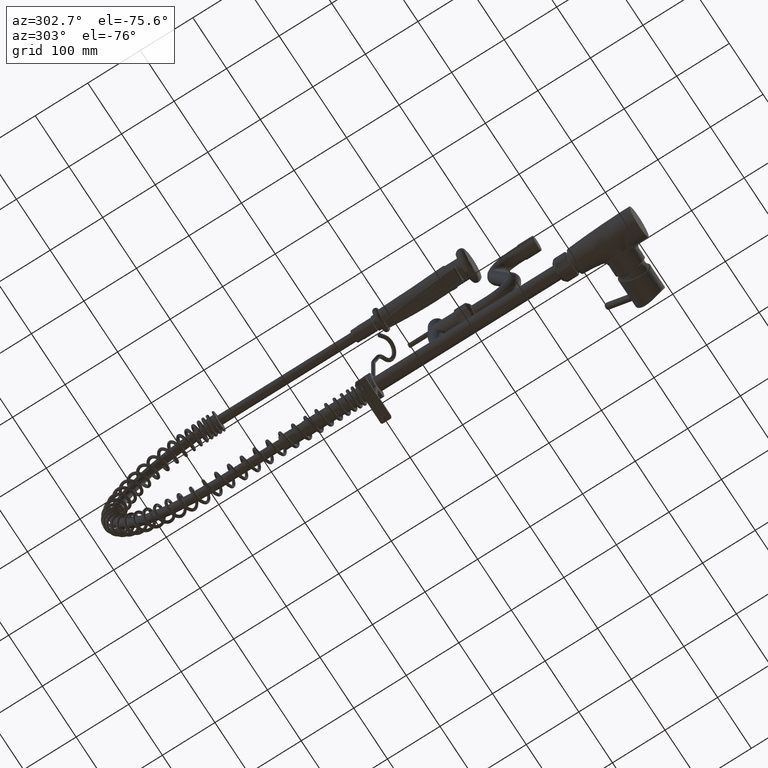
[diagram: clean part render]
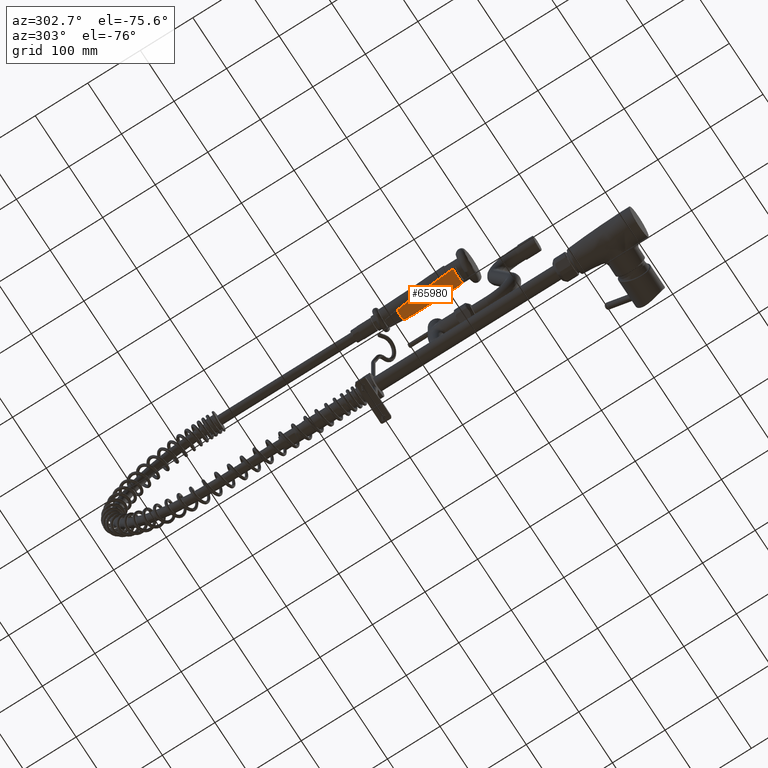
[diagram: same view with one face highlighted and labeled with its STEP entity id]
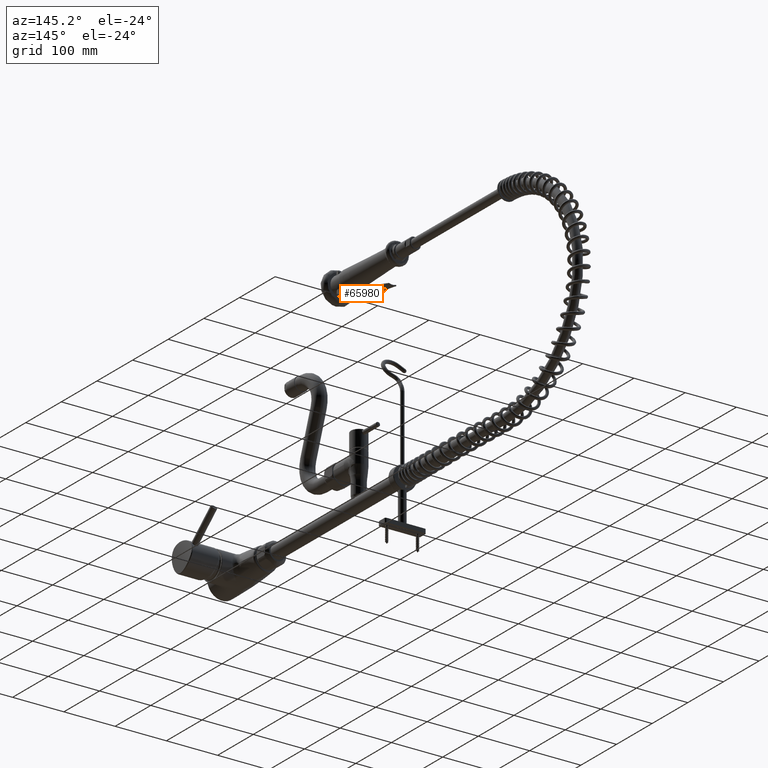
[diagram: same view with one face highlighted and labeled with its STEP entity id]
A machine part, auxiliary view. The second image highlights one B-rep face of the part: STEP entity #65980.
A second angle (auxiliary view) of the same face is appended — the face is thin or edge-on in the first view.
In plain terms, the highlighted face is a freeform B-spline surface patch.
Its self-contained STEP definition (entity closure, byte-faithful):
#22029=CARTESIAN_POINT('',(-1.401028635978E1,3.499243942189E2,
3.748944125298E2));
#22030=CARTESIAN_POINT('',(-1.400960546853E1,3.497394731117E2,
3.749468368928E2));
#22031=CARTESIAN_POINT('',(-1.400439826665E1,3.493511387567E2,
3.750541515695E2));
#22032=CARTESIAN_POINT('',(-1.398371914806E1,3.487226482184E2,
3.752190022587E2));
#22033=CARTESIAN_POINT('',(-1.394732291550E1,3.480196111076E2,
3.753941082570E2));
#22034=CARTESIAN_POINT('',(-1.389221603633E1,3.472189086624E2,
3.755845305352E2));
#22035=CARTESIAN_POINT('',(-1.381664445658E1,3.463162909073E2,
3.757911298538E2));
#22036=CARTESIAN_POINT('',(-1.375211310471E1,3.456431971269E2,
3.759411342437E2));
#22037=CARTESIAN_POINT('',(-1.371637910131E1,3.452889319098E2,
3.760194588577E2));
#22153=CARTESIAN_POINT('',(-1.371637910131E1,3.452889319098E2,
3.760194588577E2));
#22154=CARTESIAN_POINT('',(-1.355269121905E1,3.452803539612E2,
3.758959971719E2));
#22155=CARTESIAN_POINT('',(-1.322260095646E1,3.452640391106E2,
3.756535614347E2));
#22156=CARTESIAN_POINT('',(-1.271942106966E1,3.452402508478E2,
3.753042587475E2));
#22157=CARTESIAN_POINT('',(-1.220868482183E1,3.452179764359E2,
3.749691116240E2));
#22158=CARTESIAN_POINT('',(-1.169068592961E1,3.451969164884E2,
3.746483745302E2));
#22159=CARTESIAN_POINT('',(-1.116579970376E1,3.451770707041E2,
3.743421600536E2));
#22160=CARTESIAN_POINT('',(-1.063442935116E1,3.451583522714E2,
3.740505861062E2));
#22161=CARTESIAN_POINT('',(-1.009691131822E1,3.451406930055E2,
3.737737482960E2));
#22162=CARTESIAN_POINT('',(-9.553654185395E0,3.451240232343E2,
3.735117909469E2));
#22163=CARTESIAN_POINT('',(-9.005062422300E0,3.451082761369E2,
3.732648559530E2));
#22164=CARTESIAN_POINT('',(-8.451557918883E0,3.450933889547E2,
3.730331050385E2));
#22165=CARTESIAN_POINT('',(-7.893296738136E0,3.450792853494E2,
3.728165401282E2));
#22166=CARTESIAN_POINT('',(-7.330389891393E0,3.450658885113E2,
3.726151145808E2));
#22167=CARTESIAN_POINT('',(-6.762958535212E0,3.450531031642E2,
3.724288436040E2));
#22168=CARTESIAN_POINT('',(-6.190956490724E0,3.450410111787E2,
3.722576731660E2));
#22169=CARTESIAN_POINT('',(-5.614326629964E0,3.450297462948E2,
3.721015809033E2));
#22170=CARTESIAN_POINT('',(-5.032873177746E0,3.450194323226E2,
3.719605831458E2));
#22171=CARTESIAN_POINT('',(-4.447225464196E0,3.450102101096E2,
3.718348840889E2));
#22172=CARTESIAN_POINT('',(-3.858360172084E0,3.450022076383E2,
3.717246682738E2));
#22173=CARTESIAN_POINT('',(-3.267223528828E0,3.449955798236E2,
3.716300567644E2));
#22174=CARTESIAN_POINT('',(-2.674518087430E0,3.449903089915E2,
3.715511356669E2));
#22175=CARTESIAN_POINT('',(-2.080771764607E0,3.449862843239E2,
3.714879759326E2));
#22176=CARTESIAN_POINT('',(-1.486614088533E0,3.449834199780E2,
3.714406505047E2));
#22177=CARTESIAN_POINT('',(-8.923197825418E-1,3.449816133688E2,
3.714091391267E2));
#22178=CARTESIAN_POINT('',(-2.979155546975E-1,3.449807641956E2,
3.713933761767E2));
#22179=CARTESIAN_POINT('',(2.965170929589E-1,3.449807522890E2,
3.713933611309E2));
#22180=CARTESIAN_POINT('',(8.909220243356E-1,3.449815794130E2,
3.714090931894E2));
#22181=CARTESIAN_POINT('',(1.485230040077E0,3.449833682508E2,3.714405725809E2));
#22182=CARTESIAN_POINT('',(2.079427137312E0,3.449862217934E2,3.714878657674E2));
#22183=CARTESIAN_POINT('',(2.673236766064E0,3.449902458399E2,3.715509962232E2));
#22184=CARTESIAN_POINT('',(3.266012237270E0,3.449955285663E2,3.716298891546E2));
#22185=CARTESIAN_POINT('',(3.857213694562E0,3.450021845484E2,3.717244706364E2));
#22186=CARTESIAN_POINT('',(4.446118483548E0,3.450102286648E2,3.718346506113E2));
#22187=CARTESIAN_POINT('',(5.031753703099E0,3.450194939296E2,3.719603031515E2));
#22188=CARTESIAN_POINT('',(5.613112491949E0,3.450298417764E2,3.721012340024E2));
#22189=CARTESIAN_POINT('',(6.189559874453E0,3.450411209526E2,3.722572345640E2));
#22190=CARTESIAN_POINT('',(6.761335599951E0,3.450531987206E2,3.724282967345E2));
#22191=CARTESIAN_POINT('',(7.328531265758E0,3.450659309319E2,3.726144537578E2));
#22192=CARTESIAN_POINT('',(7.891227394988E0,3.450792313760E2,3.728157723679E2));
#22193=CARTESIAN_POINT('',(8.449331480618E0,3.450932112511E2,3.730322457960E2));
#22194=CARTESIAN_POINT('',(9.002762458682E0,3.451079607691E2,3.732639337142E2));
#22195=CARTESIAN_POINT('',(9.551385351065E0,3.451235710800E2,3.735108501285E2));
#22196=CARTESIAN_POINT('',(1.009476087267E1,3.451401182351E2,3.737728298941E2));
#22197=CARTESIAN_POINT('',(1.063247138146E1,3.451576835836E2,3.740497278504E2));
#22198=CARTESIAN_POINT('',(1.116409421578E1,3.451763484605E2,3.743413952696E2));
#22199=CARTESIAN_POINT('',(1.168928109981E1,3.451962042494E2,3.746477287877E2));
#22200=CARTESIAN_POINT('',(1.220761378774E1,3.452173190634E2,3.749686110453E2));
#22201=CARTESIAN_POINT('',(1.271871479001E1,3.452398321213E2,3.753038946498E2));
#22202=CARTESIAN_POINT('',(1.322223700754E1,3.452635952935E2,3.756534218558E2));
#22203=CARTESIAN_POINT('',(1.355263919108E1,3.452808784604E2,3.758957983775E2));
#22204=CARTESIAN_POINT('',(1.371645189268E1,3.452896018376E2,3.760193128456E2));
#22444=CARTESIAN_POINT('',(1.371645189268E1,3.452896018376E2,3.760193128456E2));
#22445=CARTESIAN_POINT('',(1.375217326122E1,3.456437750092E2,3.759410068994E2));
#22446=CARTESIAN_POINT('',(1.381674403600E1,3.463174043480E2,3.757908787172E2));
#22447=CARTESIAN_POINT('',(1.389225849113E1,3.472194837377E2,3.755843955628E2));
#22448=CARTESIAN_POINT('',(1.394734956053E1,3.480200558771E2,3.753939999218E2));
#22449=CARTESIAN_POINT('',(1.398372935820E1,3.487229112588E2,3.752189343859E2));
#22450=CARTESIAN_POINT('',(1.400440061040E1,3.493512723831E2,3.750541150408E2));
#22451=CARTESIAN_POINT('',(1.400960567354E1,3.497395163172E2,3.749468246801E2));
#22452=CARTESIAN_POINT('',(1.401028636E1,3.499243942195E2,3.748944125294E2));
#22488=CARTESIAN_POINT('',(1.401028636E1,3.499243942195E2,3.748944125294E2));
#22489=CARTESIAN_POINT('',(1.401469642168E1,3.511224769632E2,3.745547597094E2));
#22490=CARTESIAN_POINT('',(1.402351025785E1,3.535213795606E2,3.738855852351E2));
#22491=CARTESIAN_POINT('',(1.403668630113E1,3.571276402672E2,3.729122743030E2));
#22492=CARTESIAN_POINT('',(1.404544682791E1,3.595369350121E2,3.722837418764E2));
#22493=CARTESIAN_POINT('',(1.404982022584E1,3.607428123875E2,3.719745722257E2));
#24441=CARTESIAN_POINT('',(-1.404982021274E1,3.607428123843E2,
3.719745722131E2));
#24442=CARTESIAN_POINT('',(-1.404544681297E1,3.595369345078E2,
3.722837419923E2));
#24443=CARTESIAN_POINT('',(-1.403668630298E1,3.571276391018E2,
3.729122746171E2));
#24444=CARTESIAN_POINT('',(-1.402351025189E1,3.535213784147E2,
3.738855855491E2));
#24445=CARTESIAN_POINT('',(-1.401469641969E1,3.511224764731E2,
3.745547598485E2));
#24446=CARTESIAN_POINT('',(-1.401028635978E1,3.499243942189E2,
3.748944125298E2));
#24471=CARTESIAN_POINT('',(-9.655991061084E0,4.546146521582E2,
3.546409675833E2));
#24472=CARTESIAN_POINT('',(-9.497284473141E0,4.546100262487E2,
3.545509262492E2));
#24473=CARTESIAN_POINT('',(-9.177562635915E0,4.546010206566E2,
3.543753940241E2));
#24474=CARTESIAN_POINT('',(-8.691539065168E0,4.545882591558E2,
3.541259302130E2));
#24475=CARTESIAN_POINT('',(-8.199261802284E0,4.545762429216E2,
3.538903407412E2));
#24476=CARTESIAN_POINT('',(-7.700984475648E0,4.545649713343E2,
3.536687246966E2));
#24477=CARTESIAN_POINT('',(-7.196925228686E0,4.545544423707E2,
3.534611838092E2));
#24478=CARTESIAN_POINT('',(-6.687316860977E0,4.545446537339E2,
3.532678511508E2));
#24479=CARTESIAN_POINT('',(-6.172288725660E0,4.545356052397E2,
3.530887356289E2));
#24480=CARTESIAN_POINT('',(-5.651892983173E0,4.545272958486E2,
3.529238522284E2));
#24481=CARTESIAN_POINT('',(-5.126248250610E0,4.545197263020E2,
3.527732856590E2));
#24482=CARTESIAN_POINT('',(-4.596367645525E0,4.545129084657E2,
3.526373699690E2));
#24483=CARTESIAN_POINT('',(-4.063327039261E0,4.545068494630E2,
3.525163718895E2));
#24484=CARTESIAN_POINT('',(-3.527837435088E0,4.545015479602E2,
3.524104114342E2));
#24485=CARTESIAN_POINT('',(-2.990072655521E0,4.544969960845E2,
3.523194966091E2));
#24486=CARTESIAN_POINT('',(-2.450327698597E0,4.544931874388E2,
3.522436805178E2));
#24487=CARTESIAN_POINT('',(-1.908668269583E0,4.544901142325E2,
3.521830070639E2));
#24488=CARTESIAN_POINT('',(-1.365108596622E0,4.544877917547E2,
3.521374449702E2));
#24489=CARTESIAN_POINT('',(-8.197621373267E-1,4.544862337700E2,
3.521070169072E2));
#24490=CARTESIAN_POINT('',(-2.733722307549E-1,4.544854519812E2,
3.520917889178E2));
#24491=CARTESIAN_POINT('',(2.733722316170E-1,4.544854519812E2,
3.520917889178E2));
#24492=CARTESIAN_POINT('',(8.197621379922E-1,4.544862337700E2,
3.521070169073E2));
#24493=CARTESIAN_POINT('',(1.365108597258E0,4.544877917547E2,3.521374449702E2));
#24494=CARTESIAN_POINT('',(1.908668270492E0,4.544901142325E2,3.521830070640E2));
#24495=CARTESIAN_POINT('',(2.450327699739E0,4.544931874388E2,3.522436805180E2));
#24496=CARTESIAN_POINT('',(2.990072656898E0,4.544969960845E2,3.523194966093E2));
#24497=CARTESIAN_POINT('',(3.527837436763E0,4.545015479602E2,3.524104114345E2));
#24498=CARTESIAN_POINT('',(4.063327041135E0,4.545068494630E2,3.525163718899E2));
#24499=CARTESIAN_POINT('',(4.596367647257E0,4.545129084657E2,3.526373699694E2));
#24500=CARTESIAN_POINT('',(5.126248252323E0,4.545197263020E2,3.527732856595E2));
#24501=CARTESIAN_POINT('',(5.651892985002E0,4.545272958486E2,3.529238522290E2));
#24502=CARTESIAN_POINT('',(6.172288727530E0,4.545356052397E2,3.530887356295E2));
#24503=CARTESIAN_POINT('',(6.687316862351E0,4.545446537339E2,3.532678511515E2));
#24504=CARTESIAN_POINT('',(7.196925229931E0,4.545544423707E2,3.534611838091E2));
#24505=CARTESIAN_POINT('',(7.700984474936E0,4.545649713344E2,3.536687246989E2));
#24506=CARTESIAN_POINT('',(8.199261806776E0,4.545762429212E2,3.538903407335E2));
#24507=CARTESIAN_POINT('',(8.691539048665E0,4.545882591572E2,3.541259302417E2));
#24508=CARTESIAN_POINT('',(9.177562696866E0,4.546010206515E2,3.543753939165E2));
#24509=CARTESIAN_POINT('',(9.497284341336E0,4.546100262597E2,3.545509264808E2));
#24510=CARTESIAN_POINT('',(9.655990929359E0,4.546146521692E2,3.546409678149E2));
#24515=CARTESIAN_POINT('',(1.404982022584E1,3.607428123875E2,3.719745722257E2));
#24516=CARTESIAN_POINT('',(1.405880075083E1,3.628550115283E2,3.714341290791E2));
#24517=CARTESIAN_POINT('',(1.406261877242E1,3.671088026266E2,3.703671193654E2));
#24518=CARTESIAN_POINT('',(1.402371440649E1,3.735947086994E2,3.688041765310E2));
#24519=CARTESIAN_POINT('',(1.393892975871E1,3.801312680307E2,3.672920364884E2));
#24520=CARTESIAN_POINT('',(1.380758515292E1,3.867042056638E2,3.658335700085E2));
#24521=CARTESIAN_POINT('',(1.362841116167E1,3.932809473943E2,3.644346035601E2));
#24522=CARTESIAN_POINT('',(1.340364391785E1,3.998344265329E2,3.631018177217E2));
#24523=CARTESIAN_POINT('',(1.313493749294E1,4.063277531206E2,3.618422214318E2));
#24524=CARTESIAN_POINT('',(1.282586317188E1,4.127113958745E2,3.606645468804E2));
#24525=CARTESIAN_POINT('',(1.248108212191E1,4.189515326816E2,3.595740038702E2));
#24526=CARTESIAN_POINT('',(1.210394220492E1,4.250302636846E2,3.585714519846E2));
#24527=CARTESIAN_POINT('',(1.169917772902E1,4.309349171195E2,3.576574758334E2));
#24528=CARTESIAN_POINT('',(1.141338581364E1,4.347562141388E2,3.571058054265E2));
#24529=CARTESIAN_POINT('',(1.126680936570E1,4.366377139828E2,3.568438676634E2));
#24677=CARTESIAN_POINT('',(1.126680936570E1,4.366377139828E2,3.568438676634E2));
#24678=CARTESIAN_POINT('',(1.114182335727E1,4.382033815179E2,3.566238345645E2));
#24679=CARTESIAN_POINT('',(1.088629225816E1,4.413010379078E2,3.562022958711E2));
#24680=CARTESIAN_POINT('',(1.048916275088E1,4.458464339312E2,3.556254251289E2));
#24681=CARTESIAN_POINT('',(1.007906084270E1,4.502901427273E2,3.551025017140E2));
#24682=CARTESIAN_POINT('',(9.798116603472E0,4.531845563338E2,3.547891010187E2));
#24683=CARTESIAN_POINT('',(9.655990929359E0,4.546146521692E2,3.546409678149E2));
#25192=CARTESIAN_POINT('',(-9.655991061084E0,4.546146521582E2,
3.546409675833E2));
#25238=CARTESIAN_POINT('',(-9.655991061084E0,4.546146521582E2,
3.546409675833E2));
#25239=CARTESIAN_POINT('',(-9.798090104546E0,4.531848121433E2,
3.547890714002E2));
#25240=CARTESIAN_POINT('',(-1.007891931659E1,4.502914472803E2,
3.551023434287E2));
#25241=CARTESIAN_POINT('',(-1.048879546029E1,4.458508831065E2,
3.556249206309E2));
#25242=CARTESIAN_POINT('',(-1.088534791153E1,4.413101521173E2,
3.562010313047E2));
#25243=CARTESIAN_POINT('',(-1.114109345781E1,4.382166856499E2,
3.566222635477E2));
#25244=CARTESIAN_POINT('',(-1.126591834591E1,4.366534037137E2,
3.568419167568E2));
#25345=CARTESIAN_POINT('',(-1.126591834591E1,4.366534037137E2,
3.568419167568E2));
#25346=CARTESIAN_POINT('',(-1.141224792212E1,4.347754633907E2,
3.571033075719E2));
#25347=CARTESIAN_POINT('',(-1.169726813299E1,4.309593419035E2,
3.576537224598E2));
#25348=CARTESIAN_POINT('',(-1.210239799771E1,4.250546129068E2,
3.585675794135E2));
#25349=CARTESIAN_POINT('',(-1.247977883367E1,4.189736477855E2,
3.595702328359E2));
#25350=CARTESIAN_POINT('',(-1.282479367943E1,4.127320618351E2,
3.606608242916E2));
#25351=CARTESIAN_POINT('',(-1.313417325335E1,4.063454483750E2,
3.618388785337E2));
#25352=CARTESIAN_POINT('',(-1.340310359759E1,3.998477954890E2,
3.630991117007E2));
#25353=CARTESIAN_POINT('',(-1.362816986270E1,3.932905263478E2,
3.644326394716E2));
#25354=CARTESIAN_POINT('',(-1.380738669816E1,3.867117269763E2,
3.658319060357E2));
#25355=CARTESIAN_POINT('',(-1.393885821975E1,3.801364518986E2,
3.672908614068E2));
#25356=CARTESIAN_POINT('',(-1.402369496388E1,3.735974495979E2,
3.688035264042E2));
#25357=CARTESIAN_POINT('',(-1.406261396550E1,3.671108136264E2,
3.703666190818E2));
#25358=CARTESIAN_POINT('',(-1.405880231438E1,3.628557141750E2,
3.714339480642E2));
#25359=CARTESIAN_POINT('',(-1.404982021274E1,3.607428123843E2,
3.719745722131E2));
#49558=VERTEX_POINT('',#24515);
#49559=VERTEX_POINT('',#24529);
#49563=VERTEX_POINT('',#22488);
#49565=VERTEX_POINT('',#22444);
#49571=VERTEX_POINT('',#24683);
#49591=VERTEX_POINT('',#25192);
#49592=VERTEX_POINT('',#25244);
#49596=VERTEX_POINT('',#25359);
#49598=VERTEX_POINT('',#24446);
#49600=VERTEX_POINT('',#22037);
#65912=CARTESIAN_POINT('',(-1.435934236181E1,4.559230858447E2,
3.583278112421E2));
#65913=CARTESIAN_POINT('',(-1.434586171325E1,4.370688075966E2,
3.590098205390E2));
#65914=CARTESIAN_POINT('',(-1.431973150593E1,3.994185183414E2,
3.627797316958E2));
#65915=CARTESIAN_POINT('',(-1.429376608794E1,3.624952340966E2,
3.713152424223E2));
#65916=CARTESIAN_POINT('',(-1.428045022871E1,3.443655191497E2,
3.767435720957E2));
#65917=CARTESIAN_POINT('',(-1.347811403745E1,4.558770442678E2,
3.573710524146E2));
#65918=CARTESIAN_POINT('',(-1.344819196826E1,4.369836027299E2,
3.580862343074E2));
#65919=CARTESIAN_POINT('',(-1.338983485699E1,3.992632346320E2,
3.619279048800E2));
#65920=CARTESIAN_POINT('',(-1.333179406242E1,3.622877692059E2,
3.705428723123E2));
#65921=CARTESIAN_POINT('',(-1.330218830994E1,3.441366615546E2,
3.760120231856E2));
#65922=CARTESIAN_POINT('',(-1.127707489382E1,4.557829467437E2,
3.554156664381E2));
#65923=CARTESIAN_POINT('',(-1.122417927836E1,4.368095736870E2,
3.562010616137E2));
#65924=CARTESIAN_POINT('',(-1.111764512538E1,3.989468673736E2,
3.601947882790E2));
#65925=CARTESIAN_POINT('',(-1.101118280209E1,3.618671931665E2,
3.689777097268E2));
#65926=CARTESIAN_POINT('',(-1.095835901631E1,3.436739268650E2,
3.745328769845E2));
#65927=CARTESIAN_POINT('',(-7.243786438641E0,4.556767208673E2,
3.532082286720E2));
#65928=CARTESIAN_POINT('',(-7.192698532881E0,4.366134033727E2,
3.540792540612E2));
#65929=CARTESIAN_POINT('',(-7.090325528293E0,3.985922007411E2,
3.582568499114E2));
#65930=CARTESIAN_POINT('',(-6.987093810902E0,3.614000794934E2,
3.672406372251E2));
#65931=CARTESIAN_POINT('',(-6.935147192339E0,3.431625757586E2,
3.728983196100E2));
#65932=CARTESIAN_POINT('',(-2.466930228435E0,4.556178770316E2,
3.519854092229E2));
#65933=CARTESIAN_POINT('',(-2.446185297961E0,4.365048908744E2,
3.529072747930E2));
#65934=CARTESIAN_POINT('',(-2.404766971538E0,3.983970140785E2,
3.571920633937E2));
#65935=CARTESIAN_POINT('',(-2.363646524875E0,3.611441846552E2,
3.662892087394E2));
#65936=CARTESIAN_POINT('',(-2.343199474160E0,3.428827725361E2,
3.720039122435E2));
#65937=CARTESIAN_POINT('',(2.466930228435E0,4.556178770316E2,3.519854092229E2));
#65938=CARTESIAN_POINT('',(2.446185297961E0,4.365048908744E2,3.529072747930E2));
#65939=CARTESIAN_POINT('',(2.404766971538E0,3.983970140785E2,3.571920633937E2));
#65940=CARTESIAN_POINT('',(2.363646524875E0,3.611441846552E2,3.662892087394E2));
#65941=CARTESIAN_POINT('',(2.343199474160E0,3.428827725361E2,3.720039122435E2));
#65942=CARTESIAN_POINT('',(7.243786438641E0,4.556767208673E2,3.532082286720E2));
#65943=CARTESIAN_POINT('',(7.192698532882E0,4.366134033727E2,3.540792540612E2));
#65944=CARTESIAN_POINT('',(7.090325528293E0,3.985922007411E2,3.582568499114E2));
#65945=CARTESIAN_POINT('',(6.987093810902E0,3.614000794934E2,3.672406372251E2));
#65946=CARTESIAN_POINT('',(6.935147192340E0,3.431625757586E2,3.728983196100E2));
#65947=CARTESIAN_POINT('',(1.127703729995E1,4.557829457536E2,3.554156458628E2));
#65948=CARTESIAN_POINT('',(1.122414170133E1,4.368095718585E2,3.562010418366E2));
#65949=CARTESIAN_POINT('',(1.111760758714E1,3.989468640678E2,3.601947702156E2));
#65950=CARTESIAN_POINT('',(1.101114529397E1,3.618671888126E2,3.689776935357E2));
#65951=CARTESIAN_POINT('',(1.095832151636E1,3.436739220987E2,3.745328617489E2));
#65952=CARTESIAN_POINT('',(1.347805020577E1,4.558770415389E2,3.573709957072E2));
#65953=CARTESIAN_POINT('',(1.344812747033E1,4.369835976830E2,3.580861796363E2));
#65954=CARTESIAN_POINT('',(1.338976896190E1,3.992632254571E2,3.619278546186E2));
#65955=CARTESIAN_POINT('',(1.333172676309E1,3.622877570089E2,3.705428269217E2));
#65956=CARTESIAN_POINT('',(1.330212033728E1,3.441366481351E2,3.760119802894E2));
#65957=CARTESIAN_POINT('',(1.435925611592E1,4.559230813387E2,3.583277176046E2));
#65958=CARTESIAN_POINT('',(1.434577385827E1,4.370687992576E2,3.590097301481E2));
#65959=CARTESIAN_POINT('',(1.431964049694E1,3.994185031438E2,3.627796483280E2));
#65960=CARTESIAN_POINT('',(1.429367193978E1,3.624952137921E2,3.713151668309E2));
#65961=CARTESIAN_POINT('',(1.428035448628E1,3.443654967515E2,3.767435004994E2));
#65962=B_SPLINE_SURFACE_WITH_KNOTS('',3,3,((#65912,#65913,#65914,#65915,#65916),
(#65917,#65918,#65919,#65920,#65921),(#65922,#65923,#65924,#65925,#65926),(
#65927,#65928,#65929,#65930,#65931),(#65932,#65933,#65934,#65935,#65936),
(#65937,#65938,#65939,#65940,#65941),(#65942,#65943,#65944,#65945,#65946),(
#65947,#65948,#65949,#65950,#65951),(#65952,#65953,#65954,#65955,#65956),
(#65957,#65958,#65959,#65960,#65961)),.UNSPECIFIED.,.F.,.F.,.F.,(4,1,1,1,1,1,1,
4),(4,1,4),(2.849466886097E-2,1.427944230875E-1,2.856493475286E-1,
4.285449989546E-1,5.714550010454E-1,7.143506524714E-1,8.572055769125E-1,
9.715016023103E-1),(-2.524747333753E-3,1.250289115913E-1,2.525825705164E-1),
.UNSPECIFIED.);
#65964=ORIENTED_EDGE('',*,*,#65963,.T.);
#65966=ORIENTED_EDGE('',*,*,#65965,.T.);
#65968=ORIENTED_EDGE('',*,*,#65967,.F.);
#65970=ORIENTED_EDGE('',*,*,#65969,.T.);
#65972=ORIENTED_EDGE('',*,*,#65971,.T.);
#65973=ORIENTED_EDGE('',*,*,#65898,.T.);
#65974=ORIENTED_EDGE('',*,*,#63203,.T.);
#65975=ORIENTED_EDGE('',*,*,#63332,.T.);
#65976=ORIENTED_EDGE('',*,*,#63515,.T.);
#65977=ORIENTED_EDGE('',*,*,#63565,.T.);
#65978=EDGE_LOOP('',(#65964,#65966,#65968,#65970,#65972,#65973,#65974,#65975,
#65976,#65977));
#65979=FACE_OUTER_BOUND('',#65978,.F.);
#22038=B_SPLINE_CURVE_WITH_KNOTS('',3,(#22029,#22030,#22031,#22032,#22033,
#22034,#22035,#22036,#22037),.UNSPECIFIED.,.F.,.F.,(4,1,1,1,1,1,4),(0.E0,
1.666666666667E-1,3.333333333333E-1,5.E-1,6.666666666667E-1,8.333333333333E-1,
1.E0),.UNSPECIFIED.);
#22205=B_SPLINE_CURVE_WITH_KNOTS('',3,(#22153,#22154,#22155,#22156,#22157,
#22158,#22159,#22160,#22161,#22162,#22163,#22164,#22165,#22166,#22167,#22168,
#22169,#22170,#22171,#22172,#22173,#22174,#22175,#22176,#22177,#22178,#22179,
#22180,#22181,#22182,#22183,#22184,#22185,#22186,#22187,#22188,#22189,#22190,
#22191,#22192,#22193,#22194,#22195,#22196,#22197,#22198,#22199,#22200,#22201,
#22202,#22203,#22204),.UNSPECIFIED.,.F.,.F.,(4,1,1,1,1,1,1,1,1,1,1,1,1,1,1,1,1,
1,1,1,1,1,1,1,1,1,1,1,1,1,1,1,1,1,1,1,1,1,1,1,1,1,1,1,1,1,1,1,1,4),(0.E0,
2.040816326531E-2,4.081632653061E-2,6.122448979592E-2,8.163265306122E-2,
1.020408163265E-1,1.224489795918E-1,1.428571428571E-1,1.632653061224E-1,
1.836734693878E-1,2.040816326531E-1,2.244897959184E-1,2.448979591837E-1,
2.653061224490E-1,2.857142857143E-1,3.061224489796E-1,3.265306122449E-1,
3.469387755102E-1,3.673469387755E-1,3.877551020408E-1,4.081632653061E-1,
4.285714285714E-1,4.489795918367E-1,4.693877551020E-1,4.897959183673E-1,
5.102040816327E-1,5.306122448980E-1,5.510204081633E-1,5.714285714286E-1,
5.918367346939E-1,6.122448979592E-1,6.326530612245E-1,6.530612244898E-1,
6.734693877551E-1,6.938775510204E-1,7.142857142857E-1,7.346938775510E-1,
7.551020408163E-1,7.755102040816E-1,7.959183673469E-1,8.163265306122E-1,
8.367346938776E-1,8.571428571429E-1,8.775510204082E-1,8.979591836735E-1,
9.183673469388E-1,9.387755102041E-1,9.591836734694E-1,9.795918367347E-1,1.E0),
.UNSPECIFIED.);
#22453=B_SPLINE_CURVE_WITH_KNOTS('',3,(#22444,#22445,#22446,#22447,#22448,
#22449,#22450,#22451,#22452),.UNSPECIFIED.,.F.,.F.,(4,1,1,1,1,1,4),(0.E0,
1.666666666667E-1,3.333333333333E-1,5.E-1,6.666666666667E-1,8.333333333333E-1,
1.E0),.UNSPECIFIED.);
#22494=B_SPLINE_CURVE_WITH_KNOTS('',3,(#22488,#22489,#22490,#22491,#22492,
#22493),.UNSPECIFIED.,.F.,.F.,(4,1,1,4),(0.E0,3.333333333333E-1,
6.666666666667E-1,1.E0),.UNSPECIFIED.);
#24447=B_SPLINE_CURVE_WITH_KNOTS('',3,(#24441,#24442,#24443,#24444,#24445,
#24446),.UNSPECIFIED.,.F.,.F.,(4,1,1,4),(0.E0,3.333333333333E-1,
6.666666666667E-1,1.E0),.UNSPECIFIED.);
#24511=B_SPLINE_CURVE_WITH_KNOTS('',3,(#24471,#24472,#24473,#24474,#24475,
#24476,#24477,#24478,#24479,#24480,#24481,#24482,#24483,#24484,#24485,#24486,
#24487,#24488,#24489,#24490,#24491,#24492,#24493,#24494,#24495,#24496,#24497,
#24498,#24499,#24500,#24501,#24502,#24503,#24504,#24505,#24506,#24507,#24508,
#24509,#24510),.UNSPECIFIED.,.F.,.F.,(4,1,1,1,1,1,1,1,1,1,1,1,1,1,1,1,1,1,1,1,1,
1,1,1,1,1,1,1,1,1,1,1,1,1,1,1,1,4),(0.E0,2.702702702703E-2,5.405405405405E-2,
8.108108108108E-2,1.081081081081E-1,1.351351351351E-1,1.621621621622E-1,
1.891891891892E-1,2.162162162162E-1,2.432432432432E-1,2.702702702703E-1,
2.972972972973E-1,3.243243243243E-1,3.513513513514E-1,3.783783783784E-1,
4.054054054054E-1,4.324324324324E-1,4.594594594595E-1,4.864864864865E-1,
5.135135135135E-1,5.405405405405E-1,5.675675675676E-1,5.945945945946E-1,
6.216216216216E-1,6.486486486486E-1,6.756756756757E-1,7.027027027027E-1,
7.297297297297E-1,7.567567567568E-1,7.837837837838E-1,8.108108108108E-1,
8.378378378378E-1,8.648648648649E-1,8.918918918919E-1,9.189189189189E-1,
9.459459459459E-1,9.729729729730E-1,1.E0),.UNSPECIFIED.);
#24530=B_SPLINE_CURVE_WITH_KNOTS('',3,(#24515,#24516,#24517,#24518,#24519,
#24520,#24521,#24522,#24523,#24524,#24525,#24526,#24527,#24528,#24529),
.UNSPECIFIED.,.F.,.F.,(4,1,1,1,1,1,1,1,1,1,1,1,4),(0.E0,8.333333333333E-2,
1.666666666667E-1,2.5E-1,3.333333333333E-1,4.166666666667E-1,5.E-1,
5.833333333333E-1,6.666666666667E-1,7.5E-1,8.333333333333E-1,9.166666666667E-1,
1.E0),.UNSPECIFIED.);
#24684=B_SPLINE_CURVE_WITH_KNOTS('',3,(#24677,#24678,#24679,#24680,#24681,
#24682,#24683),.UNSPECIFIED.,.F.,.F.,(4,1,1,1,4),(0.E0,2.5E-1,5.E-1,7.5E-1,
1.E0),.UNSPECIFIED.);
#25245=B_SPLINE_CURVE_WITH_KNOTS('',3,(#25238,#25239,#25240,#25241,#25242,
#25243,#25244),.UNSPECIFIED.,.F.,.F.,(4,1,1,1,4),(0.E0,2.5E-1,5.E-1,7.5E-1,
1.E0),.UNSPECIFIED.);
#25360=B_SPLINE_CURVE_WITH_KNOTS('',3,(#25345,#25346,#25347,#25348,#25349,
#25350,#25351,#25352,#25353,#25354,#25355,#25356,#25357,#25358,#25359),
.UNSPECIFIED.,.F.,.F.,(4,1,1,1,1,1,1,1,1,1,1,1,4),(0.E0,8.333333333333E-2,
1.666666666667E-1,2.5E-1,3.333333333333E-1,4.166666666667E-1,5.E-1,
5.833333333333E-1,6.666666666667E-1,7.5E-1,8.333333333333E-1,9.166666666667E-1,
1.E0),.UNSPECIFIED.);
#63203=EDGE_CURVE('',#49598,#49600,#22038,.T.);
#63332=EDGE_CURVE('',#49600,#49565,#22205,.T.);
#63515=EDGE_CURVE('',#49565,#49563,#22453,.T.);
#63565=EDGE_CURVE('',#49563,#49558,#22494,.T.);
#65898=EDGE_CURVE('',#49596,#49598,#24447,.T.);
#65963=EDGE_CURVE('',#49558,#49559,#24530,.T.);
#65965=EDGE_CURVE('',#49559,#49571,#24684,.T.);
#65967=EDGE_CURVE('',#49591,#49571,#24511,.T.);
#65969=EDGE_CURVE('',#49591,#49592,#25245,.T.);
#65971=EDGE_CURVE('',#49592,#49596,#25360,.T.);
#65980=ADVANCED_FACE('',(#65979),#65962,.T.);